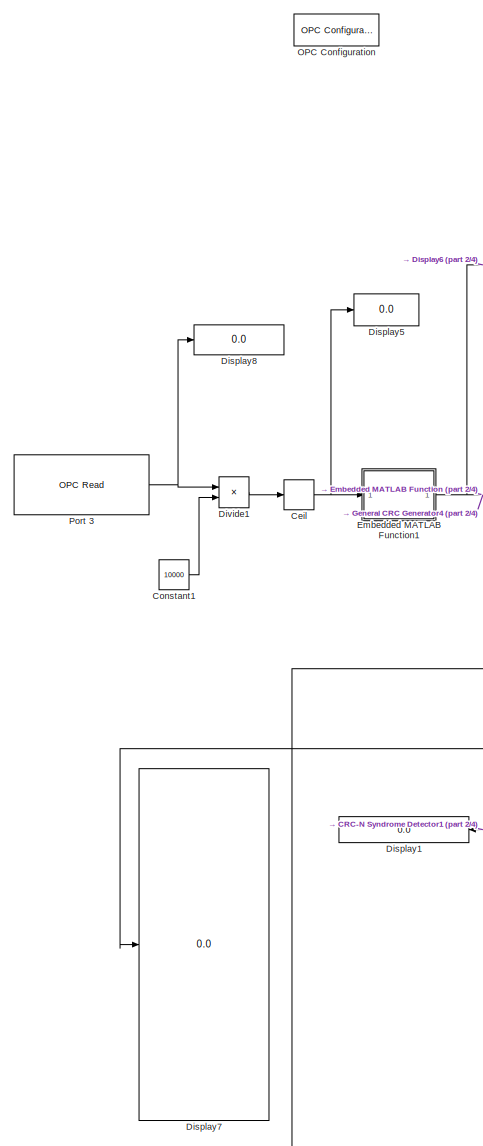
[diagram: root canvas - part 1/4, middle left region]
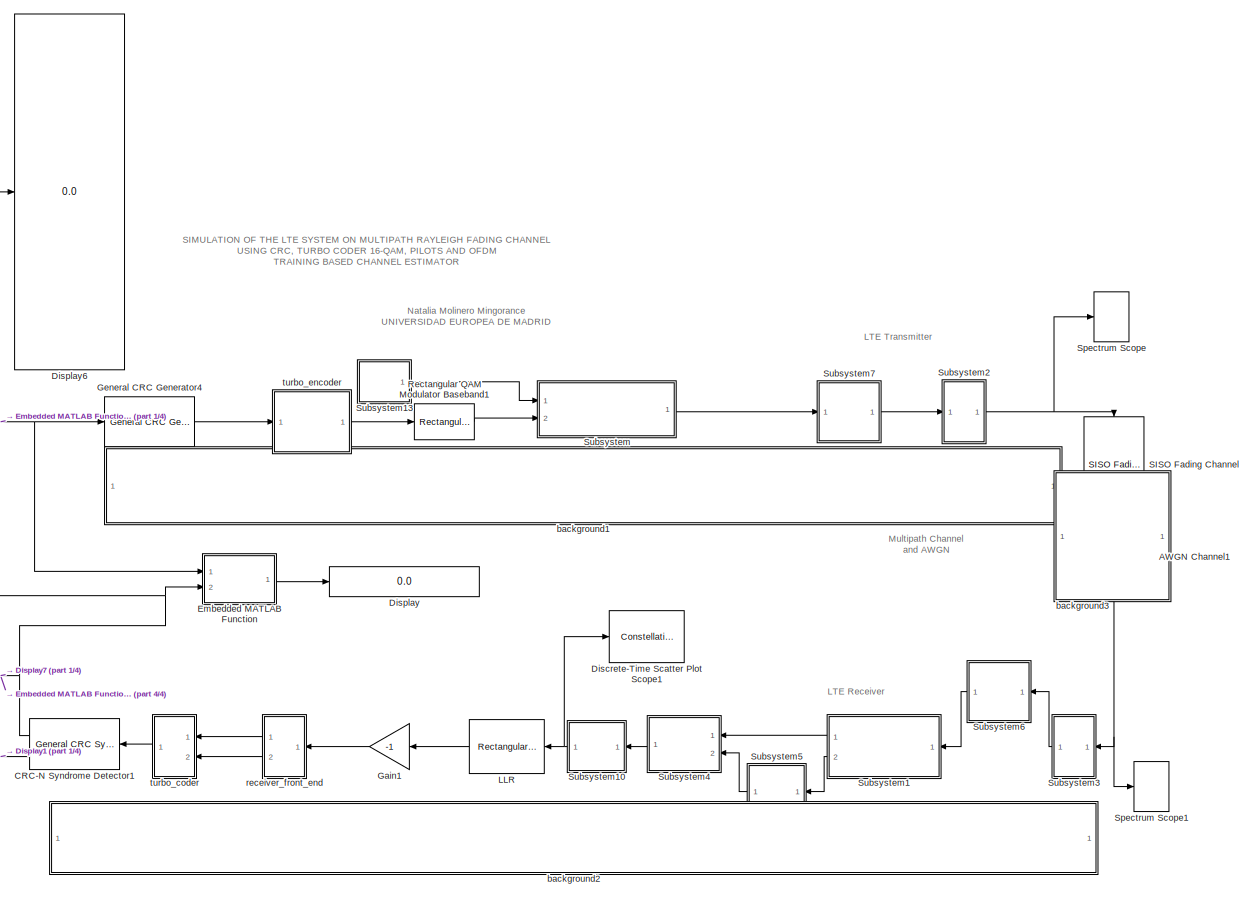
[diagram: root canvas - part 2/4, top center region]
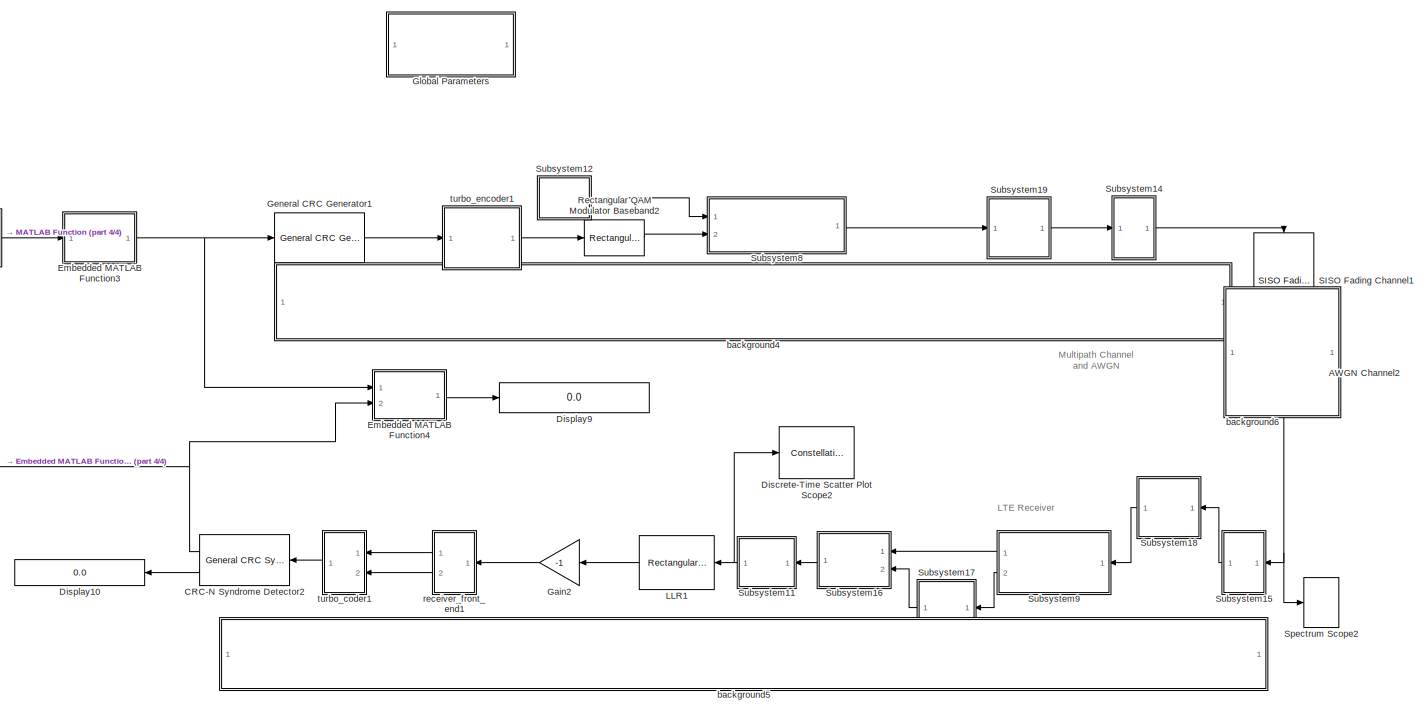
[diagram: root canvas - part 3/4, bottom right region]
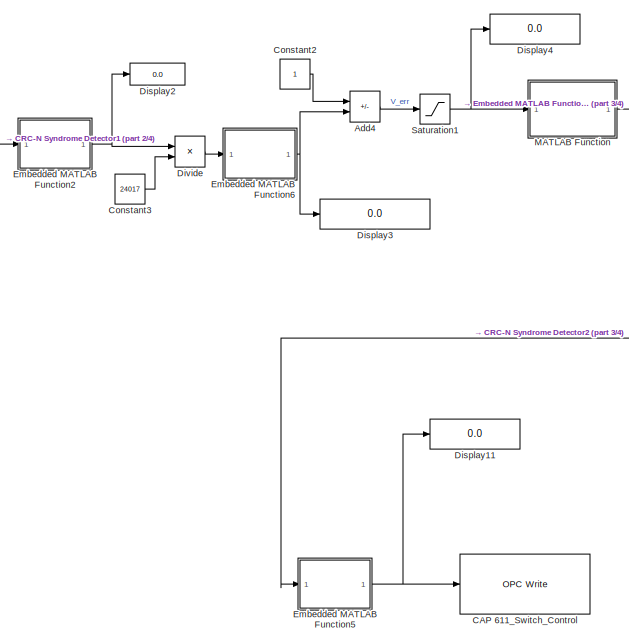
[diagram: root canvas - part 4/4, bottom left region]
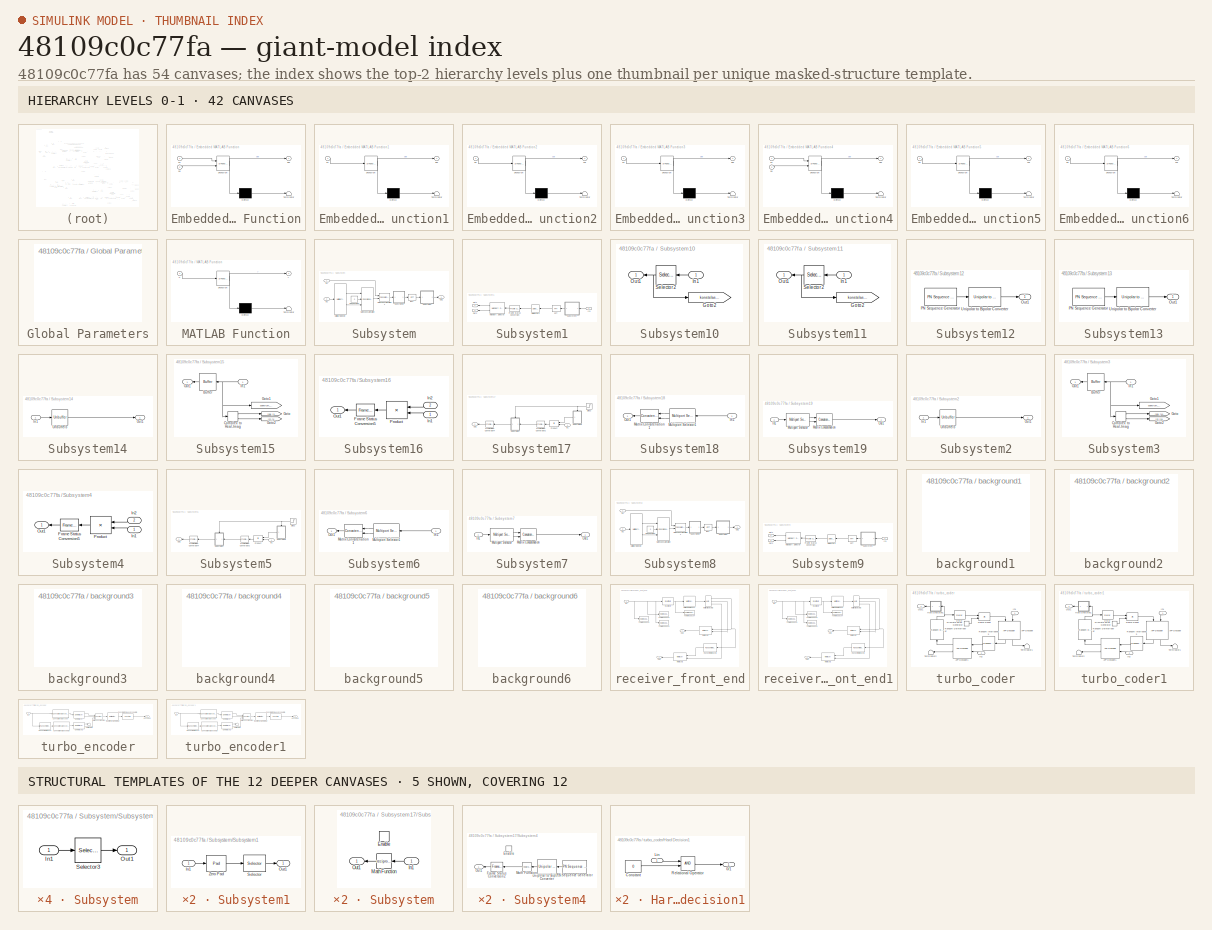
[diagram: thumbnail index - top-2 hierarchy levels (42 canvases) + 5 structural-template representatives of the remaining 12 canvases]
MODEL slx_48109c0c77fa
KIND model
CONFIG AbsTol = auto
CONFIG EnableMultiTasking = on
CONFIG FixedStep = auto
CONFIG MaxStep = auto
CONFIG MinStep = auto
CONFIG RelTol = 1e-3
CONFIG SampleTimeConstraint = Unconstrained
CONFIG SolverName = ode45
CONFIG StartTime = 0.0
CONFIG StopTime = 5
BLOCK [Reference] AWGN Channel1  REF=commchan3/AWGN
Channel
  NameLocation = left
  Ports = [1, 1]
  SourceBlock = commchan3/AWGN\nChannel
  SourceProductBaseCode = CM
  SourceType = AWGN Channel
BLOCK [Reference] AWGN Channel2  REF=commchan3/AWGN
Channel
  NameLocation = left
  Ports = [1, 1]
  SourceBlock = commchan3/AWGN\nChannel
  SourceProductBaseCode = CM
  SourceType = AWGN Channel
BLOCK [Sum] Add4
  IconShape = rectangular
  Inputs = +-
  Ports = [2, 1]
BLOCK [Reference] CAP 611_Switch_Control  REF=opclib/OPC Write
  Ports = [1]
  SourceBlock = opclib/OPC Write
  SourceProductBaseCode = OT
  SourceType = OPC Write
BLOCK [Reference] CRC-N Syndrome Detector1  REF=commcrc2/General CRC
Syndrome
Detector
  NameLocation = top
  Ports = [1, 2]
  SourceBlock = commcrc2/General CRC\nSyndrome\nDetector
  SourceProductBaseCode = CM
  SourceType = General CRC Syndrome Detector
BLOCK [Reference] CRC-N Syndrome Detector2  REF=commcrc2/General CRC
Syndrome
Detector
  NameLocation = top
  Ports = [1, 2]
  SourceBlock = commcrc2/General CRC\nSyndrome\nDetector
  SourceProductBaseCode = CM
  SourceType = General CRC Syndrome Detector
BLOCK [Rounding] Ceil
  Operator = fix
BLOCK [Constant] Constant1
  Value = 10000
BLOCK [Constant] Constant2
BLOCK [Constant] Constant3
  Value = 24017
BLOCK [ConstellationDiagram] Discrete-Time Scatter Plot Scope1
  Commented = on
  Ports = [1]
  ScopeSpecificationString = comm.scopes.ConstellationDiagramBlockCfg('CurrentConfiguration', extmgr.ConfigurationSet(extmgr.Configuration('Core','General UI',true),extmgr.Configuration('Core','Source UI',true),extmgr.Configuration('Sources','WiredSimulink',true),extmgr.Configuration('Visuals','Constellation',true,'MinYLim','-0.710699489007895','MaxYLim','0.71034','MinXLim','-0.707933120701309','MaxXLim','0.7131','AxesPropert...<+1378ch>
  Tag = ScatterPlot
BLOCK [ConstellationDiagram] Discrete-Time Scatter Plot Scope2
  Commented = on
  Ports = [1]
  ScopeSpecificationString = comm.scopes.ConstellationDiagramBlockCfg('CurrentConfiguration', extmgr.ConfigurationSet(extmgr.Configuration('Core','General UI',true),extmgr.Configuration('Core','Source UI',true),extmgr.Configuration('Sources','WiredSimulink',true),extmgr.Configuration('Visuals','Constellation',true,'MinYLim','-0.710699489007895','MaxYLim','0.71034','MinXLim','-0.707933120701309','MaxXLim','0.7131','AxesPropert...<+1378ch>
  Tag = ScatterPlot
BLOCK [Display] Display
  Decimation = 1
  Format = long
  Ports = [1]
BLOCK [Display] Display1
  Decimation = 1
  Format = long
  Ports = [1]
BLOCK [Display] Display10
  Decimation = 1
  Format = long
  Ports = [1]
BLOCK [Display] Display11
  Decimation = 1
  Ports = [1]
BLOCK [Display] Display2
  Decimation = 1
  Format = long
  Ports = [1]
BLOCK [Display] Display3
  Decimation = 1
  Format = long
  Ports = [1]
BLOCK [Display] Display4
  Decimation = 1
  Ports = [1]
BLOCK [Display] Display5
  Decimation = 1
  Format = long
  Ports = [1]
BLOCK [Display] Display6
  Decimation = 1
  Ports = [1]
BLOCK [Display] Display7
  Decimation = 1
  Format = long
  Ports = [1]
BLOCK [Display] Display8
  Decimation = 1
  Ports = [1]
BLOCK [Display] Display9
  Decimation = 1
  Format = long
  Ports = [1]
BLOCK [Product] Divide
  Inputs = */
  Ports = [2, 1]
BLOCK [Product] Divide1
  Ports = [2, 1]
BLOCK [SubSystem] Embedded MATLAB Function
  ErrorFcn = Stateflow.Translate.translate
  PermitHierarchicalResolution = ExplicitOnly
  Ports = [2, 1]
  RequestExecContextInheritance = off
  SFBlockType = MATLAB Function
  TreatAsAtomicUnit = on
BLOCK [Demux] Embedded MATLAB Function/ Demux 
  Outputs = 1
  Ports = [1, 1]
BLOCK [S-Function] Embedded MATLAB Function/ SFunction 
  EnableBusSupport = on
  FunctionName = sf_sfun
  PortCounts = [2 2]
  Ports = [2, 2]
  SFcnIsStateOwnerBlock = off
  SFunctionDeploymentMode = off
  Tag = Stateflow S-Function 2
BLOCK [Terminator] Embedded MATLAB Function/ Terminator 
BLOCK [Outport] Embedded MATLAB Function/ber
BLOCK [Inport] Embedded MATLAB Function/s2
BLOCK [Inport] Embedded MATLAB Function/s8
  Port = 2
BLOCK [SubSystem] Embedded MATLAB Function1
  ErrorFcn = Stateflow.Translate.translate
  PermitHierarchicalResolution = ExplicitOnly
  Ports = [1, 1]
  RequestExecContextInheritance = off
  SFBlockType = MATLAB Function
  TreatAsAtomicUnit = on
BLOCK [Demux] Embedded MATLAB Function1/ Demux 
  Outputs = 1
  Ports = [1, 1]
BLOCK [S-Function] Embedded MATLAB Function1/ SFunction 
  EnableBusSupport = on
  FunctionName = sf_sfun
  PortCounts = [1 2]
  Ports = [1, 2]
  SFcnIsStateOwnerBlock = off
  SFunctionDeploymentMode = off
  Tag = Stateflow S-Function 1
BLOCK [Terminator] Embedded MATLAB Function1/ Terminator 
BLOCK [Outport] Embedded MATLAB Function1/ber
BLOCK [Inport] Embedded MATLAB Function1/s2
BLOCK [SubSystem] Embedded MATLAB Function2
  ErrorFcn = Stateflow.Translate.translate
  PermitHierarchicalResolution = ExplicitOnly
  Ports = [1, 1]
  RequestExecContextInheritance = off
  SFBlockType = MATLAB Function
  TreatAsAtomicUnit = on
BLOCK [Demux] Embedded MATLAB Function2/ Demux 
  Outputs = 1
  Ports = [1, 1]
BLOCK [S-Function] Embedded MATLAB Function2/ SFunction 
  EnableBusSupport = on
  FunctionName = sf_sfun
  PortCounts = [1 2]
  Ports = [1, 2]
  SFcnIsStateOwnerBlock = off
  SFunctionDeploymentMode = off
  Tag = Stateflow S-Function 3
BLOCK [Terminator] Embedded MATLAB Function2/ Terminator 
BLOCK [Outport] Embedded MATLAB Function2/cer
BLOCK [Inport] Embedded MATLAB Function2/s8
BLOCK [SubSystem] Embedded MATLAB Function3
  ErrorFcn = Stateflow.Translate.translate
  PermitHierarchicalResolution = ExplicitOnly
  Ports = [1, 1]
  RequestExecContextInheritance = off
  SFBlockType = MATLAB Function
  TreatAsAtomicUnit = on
BLOCK [Demux] Embedded MATLAB Function3/ Demux 
  Outputs = 1
  Ports = [1, 1]
BLOCK [S-Function] Embedded MATLAB Function3/ SFunction 
  EnableBusSupport = on
  FunctionName = sf_sfun
  PortCounts = [1 2]
  Ports = [1, 2]
  SFcnIsStateOwnerBlock = off
  SFunctionDeploymentMode = off
  Tag = Stateflow S-Function 5
BLOCK [Terminator] Embedded MATLAB Function3/ Terminator 
BLOCK [Outport] Embedded MATLAB Function3/ber
BLOCK [Inport] Embedded MATLAB Function3/s2
BLOCK [SubSystem] Embedded MATLAB Function4
  ErrorFcn = Stateflow.Translate.translate
  PermitHierarchicalResolution = ExplicitOnly
  Ports = [2, 1]
  RequestExecContextInheritance = off
  SFBlockType = MATLAB Function
  TreatAsAtomicUnit = on
BLOCK [Demux] Embedded MATLAB Function4/ Demux 
  Outputs = 1
  Ports = [1, 1]
BLOCK [S-Function] Embedded MATLAB Function4/ SFunction 
  EnableBusSupport = on
  FunctionName = sf_sfun
  PortCounts = [2 2]
  Ports = [2, 2]
  SFcnIsStateOwnerBlock = off
  SFunctionDeploymentMode = off
  Tag = Stateflow S-Function 6
BLOCK [Terminator] Embedded MATLAB Function4/ Terminator 
BLOCK [Outport] Embedded MATLAB Function4/ber
BLOCK [Inport] Embedded MATLAB Function4/s2
BLOCK [Inport] Embedded MATLAB Function4/s8
  Port = 2
BLOCK [SubSystem] Embedded MATLAB Function5
  ErrorFcn = Stateflow.Translate.translate
  PermitHierarchicalResolution = ExplicitOnly
  Ports = [1, 1]
  RequestExecContextInheritance = off
  SFBlockType = MATLAB Function
  TreatAsAtomicUnit = on
BLOCK [Demux] Embedded MATLAB Function5/ Demux 
  Outputs = 1
  Ports = [1, 1]
BLOCK [S-Function] Embedded MATLAB Function5/ SFunction 
  EnableBusSupport = on
  FunctionName = sf_sfun
  PortCounts = [1 2]
  Ports = [1, 2]
  SFcnIsStateOwnerBlock = off
  SFunctionDeploymentMode = off
  Tag = Stateflow S-Function 7
BLOCK [Terminator] Embedded MATLAB Function5/ Terminator 
BLOCK [Outport] Embedded MATLAB Function5/cer
BLOCK [Inport] Embedded MATLAB Function5/s8
BLOCK [SubSystem] Embedded MATLAB Function6
  ErrorFcn = Stateflow.Translate.translate
  PermitHierarchicalResolution = ExplicitOnly
  Ports = [1, 1]
  RequestExecContextInheritance = off
  SFBlockType = MATLAB Function
  TreatAsAtomicUnit = on
BLOCK [Demux] Embedded MATLAB Function6/ Demux 
  Outputs = 1
  Ports = [1, 1]
BLOCK [S-Function] Embedded MATLAB Function6/ SFunction 
  EnableBusSupport = on
  FunctionName = sf_sfun
  PortCounts = [1 2]
  Ports = [1, 2]
  SFcnIsStateOwnerBlock = off
  SFunctionDeploymentMode = off
  Tag = Stateflow S-Function 8
BLOCK [Terminator] Embedded MATLAB Function6/ Terminator 
BLOCK [Outport] Embedded MATLAB Function6/cer
BLOCK [Inport] Embedded MATLAB Function6/s8
BLOCK [Gain] Gain1
  Gain = -1
  NameLocation = top
  OutDataTypeStr = Inherit: Same as input
  ParamDataTypeStr = Inherit: Same as input
  SaturateOnIntegerOverflow = on
BLOCK [Gain] Gain2
  Gain = -1
  NameLocation = top
  OutDataTypeStr = Inherit: Same as input
  ParamDataTypeStr = Inherit: Same as input
  SaturateOnIntegerOverflow = on
BLOCK [Reference] General CRC Generator1  REF=commcrc2/General CRC
Generator
  Ports = [1, 1]
  SourceBlock = commcrc2/General CRC\nGenerator
  SourceProductBaseCode = CM
  SourceType = General CRC Generator
BLOCK [Reference] General CRC Generator4  REF=commcrc2/General CRC
Generator
  Ports = [1, 1]
  SourceBlock = commcrc2/General CRC\nGenerator
  SourceProductBaseCode = CM
  SourceType = General CRC Generator
BLOCK [SubSystem] Global Parameters
  Ports = []
  RequestExecContextInheritance = off
BLOCK [Reference] LLR  REF=commdigbbndam3/Rectangular QAM
Demodulator
Baseband
  NameLocation = top
  Ports = [1, 1]
  SourceBlock = commdigbbndam3/Rectangular QAM\nDemodulator\nBaseband
  SourceProductBaseCode = CM
  SourceType = Rectangular QAM Demodulator Baseband
BLOCK [Reference] LLR1  REF=commdigbbndam3/Rectangular QAM
Demodulator
Baseband
  NameLocation = top
  Ports = [1, 1]
  SourceBlock = commdigbbndam3/Rectangular QAM\nDemodulator\nBaseband
  SourceProductBaseCode = CM
  SourceType = Rectangular QAM Demodulator Baseband
BLOCK [SubSystem] MATLAB Function
  ErrorFcn = Stateflow.Translate.translate
  PermitHierarchicalResolution = ExplicitOnly
  Ports = [1, 1]
  RequestExecContextInheritance = off
  SFBlockType = MATLAB Function
  TreatAsAtomicUnit = on
BLOCK [Demux] MATLAB Function/ Demux 
  Outputs = 1
  Ports = [1, 1]
BLOCK [S-Function] MATLAB Function/ SFunction 
  EnableBusSupport = on
  FunctionName = sf_sfun
  PortCounts = [1 2]
  Ports = [1, 2]
  SFcnIsStateOwnerBlock = off
  SFunctionDeploymentMode = off
  Tag = Stateflow S-Function 4
BLOCK [Terminator] MATLAB Function/ Terminator 
BLOCK [Inport] MATLAB Function/u
BLOCK [Outport] MATLAB Function/y
BLOCK [Reference] OPC Configuration  REF=opclib/OPC Configuration
  Ports = []
  SourceBlock = opclib/OPC Configuration
  SourceProductBaseCode = OT
  SourceType = OPC Configuration
BLOCK [Reference] Port 3  REF=opclib/OPC Read
  Ports = [0, 1]
  SourceBlock = opclib/OPC Read
  SourceProductBaseCode = OT
  SourceType = OPC Read
BLOCK [Reference] Rectangular QAM Modulator Baseband1  REF=commdigbbndam3/Rectangular QAM
Modulator
Baseband
  Ports = [1, 1]
  SourceBlock = commdigbbndam3/Rectangular QAM\nModulator\nBaseband
  SourceProductBaseCode = CM
  SourceType = Rectangular QAM Modulator Baseband
BLOCK [Reference] Rectangular QAM Modulator Baseband2  REF=commdigbbndam3/Rectangular QAM
Modulator
Baseband
  Ports = [1, 1]
  SourceBlock = commdigbbndam3/Rectangular QAM\nModulator\nBaseband
  SourceProductBaseCode = CM
  SourceType = Rectangular QAM Modulator Baseband
BLOCK [Reference] SISO Fading Channel  REF=commchan3/SISO Fading Channel
  NameLocation = left
  Ports = [1, 1]
  SourceBlock = commchan3/SISO Fading Channel
  SourceProductBaseCode = CM
  SourceType = SISO Fading Channel
BLOCK [Reference] SISO Fading Channel1  REF=commchan3/SISO Fading Channel
  NameLocation = left
  Ports = [1, 1]
  SourceBlock = commchan3/SISO Fading Channel
  SourceProductBaseCode = CM
  SourceType = SISO Fading Channel
BLOCK [Saturate] Saturation1
  LowerLimit = -0.05
  UpperLimit = 0.05
BLOCK [SpectrumAnalyzer] Spectrum Scope
  Commented = on
  Ports = [1]
  ScopeSpecificationString = spbscopes.SpectrumAnalyzerBlockCfg('CurrentConfiguration', extmgr.ConfigurationSet(extmgr.Configuration('Core','General UI',true),extmgr.Configuration('Core','Source UI',true),extmgr.Configuration('Sources','WiredSimulink',true),extmgr.Configuration('Visuals','Spectrum',true,'AxesProperties',struct('Color',{[0 0 0],[0 0 0]},'XColor',{[0.686274509803922 0.686274509803922 0.686274509803922],[0.68627...<+2213ch>
BLOCK [SpectrumAnalyzer] Spectrum Scope1
  Commented = on
  Ports = [1]
  ScopeSpecificationString = spbscopes.SpectrumAnalyzerBlockCfg('CurrentConfiguration', extmgr.ConfigurationSet(extmgr.Configuration('Core','General UI',true),extmgr.Configuration('Core','Source UI',true),extmgr.Configuration('Sources','WiredSimulink',true),extmgr.Configuration('Visuals','Spectrum',true,'AxesProperties',struct('Color',{[0 0 0],[0 0 0]},'XColor',{[0.686274509803922 0.686274509803922 0.686274509803922],[0.68627...<+2096ch>
BLOCK [SpectrumAnalyzer] Spectrum Scope2
  Ports = [1]
  ScopeSpecificationString = spbscopes.SpectrumAnalyzerBlockCfg('CurrentConfiguration', extmgr.ConfigurationSet(extmgr.Configuration('Core','General UI',true),extmgr.Configuration('Core','Source UI',true),extmgr.Configuration('Sources','WiredSimulink',true),extmgr.Configuration('Visuals','Spectrum',true,'AxesProperties',struct('Color',{[0 0 0],[0 0 0]},'XColor',{[0.686274509803922 0.686274509803922 0.686274509803922],[0.68627...<+2214ch>
BLOCK [SubSystem] Subsystem
  Ports = [2, 1]
  RequestExecContextInheritance = off
BLOCK [Constant] Subsystem/DSP Constant
  FramePeriod = 16e-5/2
  SamplingMode = Frame based
  Value = 0
  VectorParams1D = off
BLOCK [Reference] Subsystem/IFFT  REF=dspxfrm3/IFFT
  Ports = [1, 1]
  SourceBlock = dspxfrm3/IFFT
  SourceProductBaseCode = DS
  SourceType = IFFT
BLOCK [Inport] Subsystem/In1
BLOCK [Inport] Subsystem/In2
  Port = 2
BLOCK [Concatenate] Subsystem/Matrix Concatenation
  Mode = Multidimensional array
  NumInputs = 3
  Ports = [3, 1]
BLOCK [Concatenate] Subsystem/Matrix Concatenation1
  ConcatenateDimension = 2
  Mode = Multidimensional array
  Ports = [2, 1]
BLOCK [Reference] Subsystem/Multiport Selector  REF=dspindex/Multiport
Selector
  Ports = [1, 2]
  SourceBlock = dspindex/Multiport\nSelector
  SourceProductBaseCode = DS
  SourceType = Multiport Selector
BLOCK [Outport] Subsystem/Out1
BLOCK [SubSystem] Subsystem/Subsystem
  Ports = [1, 1]
  RequestExecContextInheritance = off
BLOCK [Inport] Subsystem/Subsystem/In1
BLOCK [Outport] Subsystem/Subsystem/Out1
BLOCK [Selector] Subsystem/Subsystem/Selector3
  IndexOptions = Index vector (dialog),Select all
  Indices = [39:64,1:64],-1
  InputPortWidth = 64
  NumberOfDimensions = 2
  OutputSizes = 1
  Ports = [1, 1]
BLOCK [SubSystem] Subsystem/Subsystem1
  Ports = [1, 1]
  RequestExecContextInheritance = off
BLOCK [Inport] Subsystem/Subsystem1/In1
BLOCK [Outport] Subsystem/Subsystem1/Out1
BLOCK [Selector] Subsystem/Subsystem1/Selector
  IndexOptions = Index vector (dialog),Select all
  Indices = [12:64,1:11],-1
  InputPortWidth = 64
  NumberOfDimensions = 2
  OutputSizes = 1
  Ports = [1, 1]
BLOCK [Reference] Subsystem/Subsystem1/Zero Pad  REF=dspsigops/Pad
  Ports = [1, 1]
  SourceBlock = dspsigops/Pad
  SourceProductBaseCode = DS
  SourceType = Pad
BLOCK [SubSystem] Subsystem1
  Ports = [1, 2]
  RequestExecContextInheritance = off
BLOCK [Reference] Subsystem1/FFT  REF=dspxfrm3/FFT
  Ports = [1, 1]
  SourceBlock = dspxfrm3/FFT
  SourceProductBaseCode = DS
  SourceType = FFT
BLOCK [Reference] Subsystem1/Frame Status Conversion  REF=dspobslib/Frame Status
Conversion
  Ports = [1, 1]
  SourceBlock = dspobslib/Frame Status\nConversion
  SourceProductBaseCode = DS
  SourceType = Frame Status Conversion
BLOCK [Inport] Subsystem1/In1
BLOCK [Reference] Subsystem1/Multiport Selector  REF=dspindex/Multiport
Selector
  Ports = [1, 2]
  SourceBlock = dspindex/Multiport\nSelector
  SourceProductBaseCode = DS
  SourceType = Multiport Selector
BLOCK [Outport] Subsystem1/Out1
BLOCK [Outport] Subsystem1/Out2
  Port = 2
BLOCK [Selector] Subsystem1/Selector1
  IndexOptions = Index vector (dialog),Select all
  Indices = [54:64,1:12],-1
  InputPortWidth = 64
  NumberOfDimensions = 2
  OutputSizes = 1
  Ports = [1, 1]
BLOCK [SubSystem] Subsystem1/Subsystem
  Ports = [1, 1]
  RequestExecContextInheritance = off
BLOCK [Inport] Subsystem1/Subsystem/In1
BLOCK [Outport] Subsystem1/Subsystem/Out1
BLOCK [Selector] Subsystem1/Subsystem/Selector4
  IndexOptions = Index vector (dialog),Select all
  Indices = [27:90],-1
  InputPortWidth = 78
  NumberOfDimensions = 2
  OutputSizes = 1
  Ports = [1, 1]
BLOCK [SubSystem] Subsystem10
  Ports = [1, 1]
  RequestExecContextInheritance = off
BLOCK [Goto] Subsystem10/Goto2
  GotoTag = konstelasi_stl1
  TagVisibility = global
BLOCK [Inport] Subsystem10/In1
BLOCK [Outport] Subsystem10/Out1
BLOCK [Selector] Subsystem10/Selector2
  IndexOptions = Index vector (dialog),Select all
  Indices = [1:11,13:23],-1
  InputPortWidth = 31
  NumberOfDimensions = 2
  OutputSizes = 1
  Ports = [1, 1]
BLOCK [SubSystem] Subsystem11
  Ports = [1, 1]
  RequestExecContextInheritance = off
BLOCK [Goto] Subsystem11/Goto2
  GotoTag = konstelasi_stl
  TagVisibility = global
BLOCK [Inport] Subsystem11/In1
BLOCK [Outport] Subsystem11/Out1
BLOCK [Selector] Subsystem11/Selector2
  IndexOptions = Index vector (dialog),Select all
  Indices = [1:11,13:23],-1
  InputPortWidth = 31
  NumberOfDimensions = 2
  OutputSizes = 1
  Ports = [1, 1]
BLOCK [SubSystem] Subsystem12
  Ports = [0, 1]
  RequestExecContextInheritance = off
BLOCK [Outport] Subsystem12/Out1
BLOCK [Reference] Subsystem12/PN Sequence Generator  REF=commseqgen3/PN Sequence
Generator
  Ports = [0, 1]
  SourceBlock = commseqgen3/PN Sequence\nGenerator
  SourceProductBaseCode = CM
  SourceType = PN Sequence Generator
BLOCK [Reference] Subsystem12/Unipolar to Bipolar Converter  REF=commutil2/Unipolar to
Bipolar
Converter
  Ports = [1, 1]
  SourceBlock = commutil2/Unipolar to\nBipolar\nConverter
  SourceProductBaseCode = CM
  SourceType = Unipolar to Bipolar Converter
BLOCK [SubSystem] Subsystem13
  Ports = [0, 1]
  RequestExecContextInheritance = off
BLOCK [Outport] Subsystem13/Out1
BLOCK [Reference] Subsystem13/PN Sequence Generator  REF=commseqgen3/PN Sequence
Generator
  Ports = [0, 1]
  SourceBlock = commseqgen3/PN Sequence\nGenerator
  SourceProductBaseCode = CM
  SourceType = PN Sequence Generator
BLOCK [Reference] Subsystem13/Unipolar to Bipolar Converter  REF=commutil2/Unipolar to
Bipolar
Converter
  Ports = [1, 1]
  SourceBlock = commutil2/Unipolar to\nBipolar\nConverter
  SourceProductBaseCode = CM
  SourceType = Unipolar to Bipolar Converter
BLOCK [SubSystem] Subsystem14
  Ports = [1, 1]
  RequestExecContextInheritance = off
BLOCK [Inport] Subsystem14/In1
BLOCK [Outport] Subsystem14/Out1
BLOCK [Unbuffer] Subsystem14/Unbuffer3
  Ports = [1, 1]
BLOCK [SubSystem] Subsystem15
  Ports = [1, 1]
  RequestExecContextInheritance = off
BLOCK [Buffer] Subsystem15/Buffer
  N = 180
BLOCK [ComplexToRealImag] Subsystem15/Complex to Real-Imag
  Ports = [1, 2]
BLOCK [Goto] Subsystem15/Goto
  GotoTag = real_rx
  TagVisibility = global
BLOCK [Goto] Subsystem15/Goto1
  GotoTag = spektrum_terima
  TagVisibility = global
BLOCK [Goto] Subsystem15/Goto2
  GotoTag = im_rx
  TagVisibility = global
BLOCK [Inport] Subsystem15/In1
BLOCK [Outport] Subsystem15/Out1
BLOCK [SubSystem] Subsystem16
  Ports = [2, 1]
  RequestExecContextInheritance = off
BLOCK [Reference] Subsystem16/Frame Status Conversion5  REF=dspobslib/Frame Status
Conversion
  Ports = [1, 1]
  SourceBlock = dspobslib/Frame Status\nConversion
  SourceProductBaseCode = DS
  SourceType = Frame Status Conversion
BLOCK [Inport] Subsystem16/In1
BLOCK [Inport] Subsystem16/In2
  Port = 2
BLOCK [Outport] Subsystem16/Out1
BLOCK [Product] Subsystem16/Product
  OutDataTypeStr = Inherit: Same as first input
  Ports = [2, 1]
  SaturateOnIntegerOverflow = on
BLOCK [SubSystem] Subsystem17
  Ports = [1, 1]
  RequestExecContextInheritance = off
BLOCK [Reference] Subsystem17/Frame Status Conversion2  REF=dspobslib/Frame Status
Conversion
  Ports = [1, 1]
  SourceBlock = dspobslib/Frame Status\nConversion
  SourceProductBaseCode = DS
  SourceType = Frame Status Conversion
BLOCK [Reference] Subsystem17/Frame Status Conversion4  REF=dspobslib/Frame Status
Conversion
  Ports = [1, 1]
  SourceBlock = dspobslib/Frame Status\nConversion
  SourceProductBaseCode = DS
  SourceType = Frame Status Conversion
BLOCK [Inport] Subsystem17/In1
BLOCK [Outport] Subsystem17/Out1
BLOCK [Product] Subsystem17/Product
  OutDataTypeStr = Inherit: Same as first input
  Ports = [2, 1]
  SaturateOnIntegerOverflow = on
BLOCK [Step] Subsystem17/Step2
  SampleTime = 16e-5/2
  Time = 16e-5/2
BLOCK [SubSystem] Subsystem17/Subsystem
  Ports = [1, 1, 1]
  RequestExecContextInheritance = off
BLOCK [EnablePort] Subsystem17/Subsystem/Enable
  Ports = []
BLOCK [Inport] Subsystem17/Subsystem/In1
BLOCK [Math] Subsystem17/Subsystem/Math Function
  Operator = reciprocal
  Ports = [1, 1]
  SignedPower = on
BLOCK [Outport] Subsystem17/Subsystem/Out1
BLOCK [SubSystem] Subsystem17/Subsystem4
  Ports = [0, 1, 1]
  RequestExecContextInheritance = off
  TreatAsAtomicUnit = on
BLOCK [EnablePort] Subsystem17/Subsystem4/Enable
  Ports = []
BLOCK [Reference] Subsystem17/Subsystem4/Frame Status Conversion2  REF=dspobslib/Frame Status
Conversion
  Ports = [1, 1]
  SourceBlock = dspobslib/Frame Status\nConversion
  SourceProductBaseCode = DS
  SourceType = Frame Status Conversion
BLOCK [Math] Subsystem17/Subsystem4/Math Function
  Operator = reciprocal
  Ports = [1, 1]
  SignedPower = on
BLOCK [Outport] Subsystem17/Subsystem4/Out1
BLOCK [Reference] Subsystem17/Subsystem4/PN Sequence Generator  REF=commseqgen3/PN Sequence
Generator
  Ports = [0, 1]
  SourceBlock = commseqgen3/PN Sequence\nGenerator
  SourceProductBaseCode = CM
  SourceType = PN Sequence Generator
BLOCK [Reference] Subsystem17/Subsystem4/Unipolar to Bipolar Converter  REF=commutil2/Unipolar to
Bipolar
Converter
  Ports = [1, 1]
  SourceBlock = commutil2/Unipolar to\nBipolar\nConverter
  SourceProductBaseCode = CM
  SourceType = Unipolar to Bipolar Converter
BLOCK [SubSystem] Subsystem18
  Ports = [1, 1]
  RequestExecContextInheritance = off
BLOCK [Inport] Subsystem18/In1
BLOCK [Concatenate] Subsystem18/Matrix Concatenation1
  ConcatenateDimension = 2
  Mode = Multidimensional array
  Ports = [2, 1]
BLOCK [Reference] Subsystem18/Multiport Selector1  REF=dspindex/Multiport
Selector
  Ports = [1, 2]
  SourceBlock = dspindex/Multiport\nSelector
  SourceProductBaseCode = DS
  SourceType = Multiport Selector
BLOCK [Outport] Subsystem18/Out1
BLOCK [SubSystem] Subsystem19
  Ports = [1, 1]
  RequestExecContextInheritance = off
BLOCK [Inport] Subsystem19/In1
BLOCK [Concatenate] Subsystem19/Matrix Concatenation
  Mode = Multidimensional array
  Ports = [2, 1]
BLOCK [Reference] Subsystem19/Multiport Selector  REF=dspindex/Multiport
Selector
  Ports = [1, 2]
  SourceBlock = dspindex/Multiport\nSelector
  SourceProductBaseCode = DS
  SourceType = Multiport Selector
BLOCK [Outport] Subsystem19/Out1
BLOCK [SubSystem] Subsystem2
  Ports = [1, 1]
  RequestExecContextInheritance = off
BLOCK [Inport] Subsystem2/In1
BLOCK [Outport] Subsystem2/Out1
BLOCK [Unbuffer] Subsystem2/Unbuffer3
  Ports = [1, 1]
BLOCK [SubSystem] Subsystem3
  Ports = [1, 1]
  RequestExecContextInheritance = off
BLOCK [Buffer] Subsystem3/Buffer
  N = 180
BLOCK [ComplexToRealImag] Subsystem3/Complex to Real-Imag
  Ports = [1, 2]
BLOCK [Goto] Subsystem3/Goto
  GotoTag = real_rx1
  TagVisibility = global
BLOCK [Goto] Subsystem3/Goto1
  GotoTag = spektrum_terima1
  TagVisibility = global
BLOCK [Goto] Subsystem3/Goto2
  GotoTag = im_rx1
  TagVisibility = global
BLOCK [Inport] Subsystem3/In1
BLOCK [Outport] Subsystem3/Out1
BLOCK [SubSystem] Subsystem4
  Ports = [2, 1]
  RequestExecContextInheritance = off
BLOCK [Reference] Subsystem4/Frame Status Conversion5  REF=dspobslib/Frame Status
Conversion
  Ports = [1, 1]
  SourceBlock = dspobslib/Frame Status\nConversion
  SourceProductBaseCode = DS
  SourceType = Frame Status Conversion
BLOCK [Inport] Subsystem4/In1
BLOCK [Inport] Subsystem4/In2
  Port = 2
BLOCK [Outport] Subsystem4/Out1
BLOCK [Product] Subsystem4/Product
  OutDataTypeStr = Inherit: Same as first input
  Ports = [2, 1]
  SaturateOnIntegerOverflow = on
BLOCK [SubSystem] Subsystem5
  Ports = [1, 1]
  RequestExecContextInheritance = off
BLOCK [Reference] Subsystem5/Frame Status Conversion2  REF=dspobslib/Frame Status
Conversion
  Ports = [1, 1]
  SourceBlock = dspobslib/Frame Status\nConversion
  SourceProductBaseCode = DS
  SourceType = Frame Status Conversion
BLOCK [Reference] Subsystem5/Frame Status Conversion4  REF=dspobslib/Frame Status
Conversion
  Ports = [1, 1]
  SourceBlock = dspobslib/Frame Status\nConversion
  SourceProductBaseCode = DS
  SourceType = Frame Status Conversion
BLOCK [Inport] Subsystem5/In1
BLOCK [Outport] Subsystem5/Out1
BLOCK [Product] Subsystem5/Product
  OutDataTypeStr = Inherit: Same as first input
  Ports = [2, 1]
  SaturateOnIntegerOverflow = on
BLOCK [Step] Subsystem5/Step2
  SampleTime = 16e-5/2
  Time = 16e-5/2
BLOCK [SubSystem] Subsystem5/Subsystem
  Ports = [1, 1, 1]
  RequestExecContextInheritance = off
BLOCK [EnablePort] Subsystem5/Subsystem/Enable
  Ports = []
BLOCK [Inport] Subsystem5/Subsystem/In1
BLOCK [Math] Subsystem5/Subsystem/Math Function
  Operator = reciprocal
  Ports = [1, 1]
  SignedPower = on
BLOCK [Outport] Subsystem5/Subsystem/Out1
BLOCK [SubSystem] Subsystem5/Subsystem4
  Ports = [0, 1, 1]
  RequestExecContextInheritance = off
  TreatAsAtomicUnit = on
BLOCK [EnablePort] Subsystem5/Subsystem4/Enable
  Ports = []
BLOCK [Reference] Subsystem5/Subsystem4/Frame Status Conversion2  REF=dspobslib/Frame Status
Conversion
  Ports = [1, 1]
  SourceBlock = dspobslib/Frame Status\nConversion
  SourceProductBaseCode = DS
  SourceType = Frame Status Conversion
BLOCK [Math] Subsystem5/Subsystem4/Math Function
  Operator = reciprocal
  Ports = [1, 1]
  SignedPower = on
BLOCK [Outport] Subsystem5/Subsystem4/Out1
BLOCK [Reference] Subsystem5/Subsystem4/PN Sequence Generator  REF=commseqgen3/PN Sequence
Generator
  Ports = [0, 1]
  SourceBlock = commseqgen3/PN Sequence\nGenerator
  SourceProductBaseCode = CM
  SourceType = PN Sequence Generator
BLOCK [Reference] Subsystem5/Subsystem4/Unipolar to Bipolar Converter  REF=commutil2/Unipolar to
Bipolar
Converter
  Ports = [1, 1]
  SourceBlock = commutil2/Unipolar to\nBipolar\nConverter
  SourceProductBaseCode = CM
  SourceType = Unipolar to Bipolar Converter
BLOCK [SubSystem] Subsystem6
  Ports = [1, 1]
  RequestExecContextInheritance = off
BLOCK [Inport] Subsystem6/In1
BLOCK [Concatenate] Subsystem6/Matrix Concatenation1
  ConcatenateDimension = 2
  Mode = Multidimensional array
  Ports = [2, 1]
BLOCK [Reference] Subsystem6/Multiport Selector1  REF=dspindex/Multiport
Selector
  Ports = [1, 2]
  SourceBlock = dspindex/Multiport\nSelector
  SourceProductBaseCode = DS
  SourceType = Multiport Selector
BLOCK [Outport] Subsystem6/Out1
BLOCK [SubSystem] Subsystem7
  Ports = [1, 1]
  RequestExecContextInheritance = off
BLOCK [Inport] Subsystem7/In1
BLOCK [Concatenate] Subsystem7/Matrix Concatenation
  Mode = Multidimensional array
  Ports = [2, 1]
BLOCK [Reference] Subsystem7/Multiport Selector  REF=dspindex/Multiport
Selector
  Ports = [1, 2]
  SourceBlock = dspindex/Multiport\nSelector
  SourceProductBaseCode = DS
  SourceType = Multiport Selector
BLOCK [Outport] Subsystem7/Out1
BLOCK [SubSystem] Subsystem8
  Ports = [2, 1]
  RequestExecContextInheritance = off
BLOCK [Constant] Subsystem8/DSP Constant
  FramePeriod = 16e-5/2
  SamplingMode = Frame based
  Value = 0
  VectorParams1D = off
BLOCK [Reference] Subsystem8/IFFT  REF=dspxfrm3/IFFT
  Ports = [1, 1]
  SourceBlock = dspxfrm3/IFFT
  SourceProductBaseCode = DS
  SourceType = IFFT
BLOCK [Inport] Subsystem8/In1
BLOCK [Inport] Subsystem8/In2
  Port = 2
BLOCK [Concatenate] Subsystem8/Matrix Concatenation
  Mode = Multidimensional array
  NumInputs = 3
  Ports = [3, 1]
BLOCK [Concatenate] Subsystem8/Matrix Concatenation1
  ConcatenateDimension = 2
  Mode = Multidimensional array
  Ports = [2, 1]
BLOCK [Reference] Subsystem8/Multiport Selector  REF=dspindex/Multiport
Selector
  Ports = [1, 2]
  SourceBlock = dspindex/Multiport\nSelector
  SourceProductBaseCode = DS
  SourceType = Multiport Selector
BLOCK [Outport] Subsystem8/Out1
BLOCK [SubSystem] Subsystem8/Subsystem
  Ports = [1, 1]
  RequestExecContextInheritance = off
BLOCK [Inport] Subsystem8/Subsystem/In1
BLOCK [Outport] Subsystem8/Subsystem/Out1
BLOCK [Selector] Subsystem8/Subsystem/Selector3
  IndexOptions = Index vector (dialog),Select all
  Indices = [39:64,1:64],-1
  InputPortWidth = 64
  NumberOfDimensions = 2
  OutputSizes = 1
  Ports = [1, 1]
BLOCK [SubSystem] Subsystem8/Subsystem1
  Ports = [1, 1]
  RequestExecContextInheritance = off
BLOCK [Inport] Subsystem8/Subsystem1/In1
BLOCK [Outport] Subsystem8/Subsystem1/Out1
BLOCK [Selector] Subsystem8/Subsystem1/Selector
  IndexOptions = Index vector (dialog),Select all
  Indices = [12:64,1:11],-1
  InputPortWidth = 64
  NumberOfDimensions = 2
  OutputSizes = 1
  Ports = [1, 1]
BLOCK [Reference] Subsystem8/Subsystem1/Zero Pad  REF=dspsigops/Pad
  Ports = [1, 1]
  SourceBlock = dspsigops/Pad
  SourceProductBaseCode = DS
  SourceType = Pad
BLOCK [SubSystem] Subsystem9
  Ports = [1, 2]
  RequestExecContextInheritance = off
BLOCK [Reference] Subsystem9/FFT  REF=dspxfrm3/FFT
  Ports = [1, 1]
  SourceBlock = dspxfrm3/FFT
  SourceProductBaseCode = DS
  SourceType = FFT
BLOCK [Reference] Subsystem9/Frame Status Conversion  REF=dspobslib/Frame Status
Conversion
  Ports = [1, 1]
  SourceBlock = dspobslib/Frame Status\nConversion
  SourceProductBaseCode = DS
  SourceType = Frame Status Conversion
BLOCK [Inport] Subsystem9/In1
BLOCK [Reference] Subsystem9/Multiport Selector  REF=dspindex/Multiport
Selector
  Ports = [1, 2]
  SourceBlock = dspindex/Multiport\nSelector
  SourceProductBaseCode = DS
  SourceType = Multiport Selector
BLOCK [Outport] Subsystem9/Out1
BLOCK [Outport] Subsystem9/Out2
  Port = 2
BLOCK [Selector] Subsystem9/Selector1
  IndexOptions = Index vector (dialog),Select all
  Indices = [54:64,1:12],-1
  InputPortWidth = 64
  NumberOfDimensions = 2
  OutputSizes = 1
  Ports = [1, 1]
BLOCK [SubSystem] Subsystem9/Subsystem
  Ports = [1, 1]
  RequestExecContextInheritance = off
BLOCK [Inport] Subsystem9/Subsystem/In1
BLOCK [Outport] Subsystem9/Subsystem/Out1
BLOCK [Selector] Subsystem9/Subsystem/Selector4
  IndexOptions = Index vector (dialog),Select all
  Indices = [27:90],-1
  InputPortWidth = 78
  NumberOfDimensions = 2
  OutputSizes = 1
  Ports = [1, 1]
BLOCK [SubSystem] background1
  Ports = []
  RequestExecContextInheritance = off
BLOCK [SubSystem] background2
  Ports = []
  RequestExecContextInheritance = off
BLOCK [SubSystem] background3
  Ports = []
  RequestExecContextInheritance = off
BLOCK [SubSystem] background4
  Ports = []
  RequestExecContextInheritance = off
BLOCK [SubSystem] background5
  Ports = []
  RequestExecContextInheritance = off
BLOCK [SubSystem] background6
  Ports = []
  RequestExecContextInheritance = off
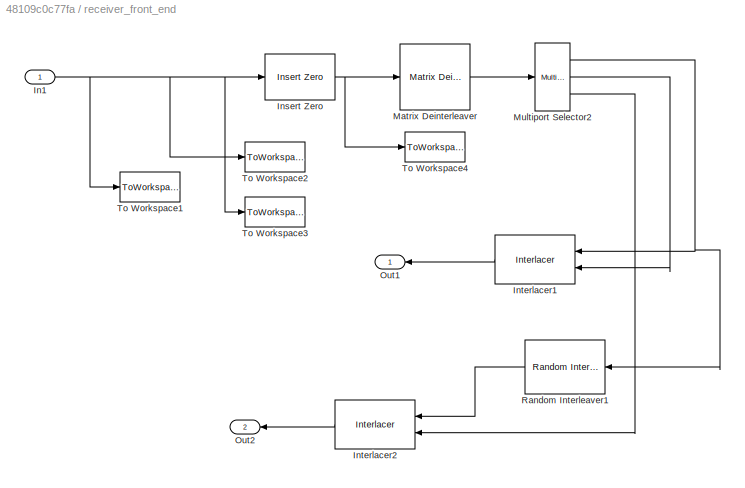
BLOCK [SubSystem] receiver_front_end
  Ports = [1, 2]
  RequestExecContextInheritance = off
BLOCK [Inport] receiver_front_end/In1
BLOCK [Reference] receiver_front_end/Insert Zero  REF=commobslib/Insert Zero
  Ports = [1, 1]
  SourceBlock = commobslib/Insert Zero
  SourceProductBaseCode = CM
  SourceType = Insert Zero
BLOCK [Reference] receiver_front_end/Interlacer1  REF=commsequence2/Interlacer
  NameLocation = top
  Ports = [2, 1]
  SourceBlock = commsequence2/Interlacer
  SourceProductBaseCode = CM
  SourceType = Interlacer
BLOCK [Reference] receiver_front_end/Interlacer2  REF=commsequence2/Interlacer
  NameLocation = top
  Ports = [2, 1]
  SourceBlock = commsequence2/Interlacer
  SourceProductBaseCode = CM
  SourceType = Interlacer
BLOCK [Reference] receiver_front_end/Matrix Deinterleaver  REF=commblkintrlv2/Matrix
Deinterleaver
  Ports = [1, 1]
  SourceBlock = commblkintrlv2/Matrix\nDeinterleaver
  SourceProductBaseCode = CM
  SourceType = Matrix Deinterleaver
BLOCK [Reference] receiver_front_end/Multiport Selector2  REF=dspindex/Multiport
Selector
  Ports = [1, 3]
  SourceBlock = dspindex/Multiport\nSelector
  SourceProductBaseCode = DS
  SourceType = Multiport Selector
BLOCK [Outport] receiver_front_end/Out1
BLOCK [Outport] receiver_front_end/Out2
  Port = 2
BLOCK [Reference] receiver_front_end/Random Interleaver1  REF=commblkintrlv2/Random
Interleaver
  Ports = [1, 1]
  SourceBlock = commblkintrlv2/Random\nInterleaver
  SourceProductBaseCode = CM
  SourceType = Random Interleaver
BLOCK [ToWorkspace] receiver_front_end/To Workspace1
  MaxDataPoints = inf
  Ports = [1]
  SampleTime = -1
  VariableName = simout4
BLOCK [ToWorkspace] receiver_front_end/To Workspace2
  MaxDataPoints = inf
  Ports = [1]
  SampleTime = -1
  VariableName = simout5
BLOCK [ToWorkspace] receiver_front_end/To Workspace3
  MaxDataPoints = inf
  Ports = [1]
  SampleTime = -1
  VariableName = simout6
BLOCK [ToWorkspace] receiver_front_end/To Workspace4
  MaxDataPoints = inf
  Ports = [1]
  SampleTime = -1
  VariableName = simout7
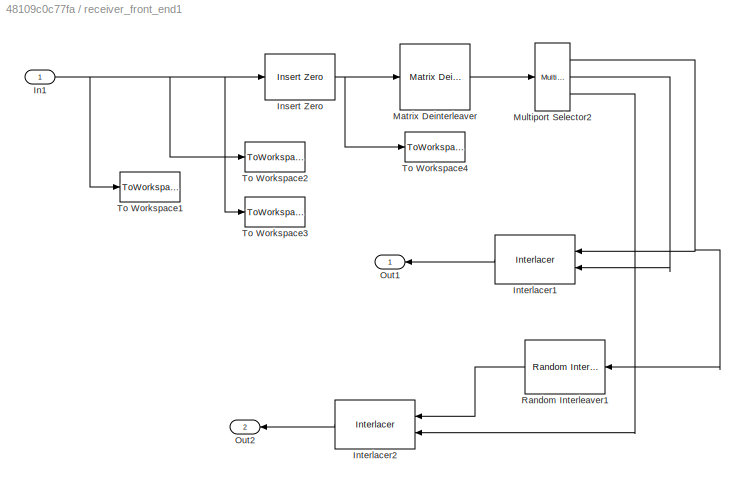
BLOCK [SubSystem] receiver_front_end1
  Ports = [1, 2]
  RequestExecContextInheritance = off
BLOCK [Inport] receiver_front_end1/In1
BLOCK [Reference] receiver_front_end1/Insert Zero  REF=commobslib/Insert Zero
  Ports = [1, 1]
  SourceBlock = commobslib/Insert Zero
  SourceProductBaseCode = CM
  SourceType = Insert Zero
BLOCK [Reference] receiver_front_end1/Interlacer1  REF=commsequence2/Interlacer
  NameLocation = top
  Ports = [2, 1]
  SourceBlock = commsequence2/Interlacer
  SourceProductBaseCode = CM
  SourceType = Interlacer
BLOCK [Reference] receiver_front_end1/Interlacer2  REF=commsequence2/Interlacer
  NameLocation = top
  Ports = [2, 1]
  SourceBlock = commsequence2/Interlacer
  SourceProductBaseCode = CM
  SourceType = Interlacer
BLOCK [Reference] receiver_front_end1/Matrix Deinterleaver  REF=commblkintrlv2/Matrix
Deinterleaver
  Ports = [1, 1]
  SourceBlock = commblkintrlv2/Matrix\nDeinterleaver
  SourceProductBaseCode = CM
  SourceType = Matrix Deinterleaver
BLOCK [Reference] receiver_front_end1/Multiport Selector2  REF=dspindex/Multiport
Selector
  Ports = [1, 3]
  SourceBlock = dspindex/Multiport\nSelector
  SourceProductBaseCode = DS
  SourceType = Multiport Selector
BLOCK [Outport] receiver_front_end1/Out1
BLOCK [Outport] receiver_front_end1/Out2
  Port = 2
BLOCK [Reference] receiver_front_end1/Random Interleaver1  REF=commblkintrlv2/Random
Interleaver
  Ports = [1, 1]
  SourceBlock = commblkintrlv2/Random\nInterleaver
  SourceProductBaseCode = CM
  SourceType = Random Interleaver
BLOCK [ToWorkspace] receiver_front_end1/To Workspace1
  MaxDataPoints = inf
  Ports = [1]
  SampleTime = -1
  VariableName = simout8
BLOCK [ToWorkspace] receiver_front_end1/To Workspace2
  MaxDataPoints = inf
  Ports = [1]
  SampleTime = -1
  VariableName = simout9
BLOCK [ToWorkspace] receiver_front_end1/To Workspace3
  MaxDataPoints = inf
  Ports = [1]
  SampleTime = -1
  VariableName = simout10
BLOCK [ToWorkspace] receiver_front_end1/To Workspace4
  MaxDataPoints = inf
  Ports = [1]
  SampleTime = -1
  VariableName = simout11
BLOCK [SubSystem] turbo_coder
  Ports = [2, 1]
  RequestExecContextInheritance = off
BLOCK [Reference] turbo_coder/APP Decoder  REF=commcnvcod2/APP Decoder
  NameLocation = right
  Ports = [2, 2]
  SourceBlock = commcnvcod2/APP Decoder
  SourceProductBaseCode = CM
  SourceType = APP Decoder
BLOCK [Reference] turbo_coder/APP Decoder1  REF=commcnvcod2/APP Decoder
  NameLocation = top
  Ports = [2, 2]
  SourceBlock = commcnvcod2/APP Decoder
  SourceProductBaseCode = CM
  SourceType = APP Decoder
BLOCK [Delay] turbo_coder/Delay
  DelayLength = Len
  InitialCondition = 0
  InputPortMap = u0
  InputProcessing = Columns as channels (frame based)
  Ports = [1, 1]
  UserDataPersistent = on
BLOCK [DiscretePulseGenerator] turbo_coder/Discrete Pulse Generator
  Period = Iter
  PhaseDelay = 1
  Ports = [0, 1]
  PulseWidth = Iter-1
BLOCK [Product] turbo_coder/Frame Reset
  InputSameDT = on
  OutDataTypeStr = Inherit: Same as first input
  Ports = [2, 1]
  SaturateOnIntegerOverflow = on
BLOCK [SubSystem] turbo_coder/Hard Decision1
  NameLocation = top
  Ports = [1, 1]
  RequestExecContextInheritance = off
BLOCK [Outport] turbo_coder/Hard Decision1/0//1
  NameLocation = top
BLOCK [Constant] turbo_coder/Hard Decision1/Constant
  Value = 0
BLOCK [Inport] turbo_coder/Hard Decision1/Lin
  NameLocation = top
BLOCK [RelationalOperator] turbo_coder/Hard Decision1/Relational Operator
  Ports = [2, 1]
BLOCK [Inport] turbo_coder/In1
  NameLocation = right
BLOCK [Inport] turbo_coder/In2
  Port = 2
BLOCK [Outport] turbo_coder/Out1
BLOCK [Reference] turbo_coder/Random Deinterleaver  REF=commblkintrlv2/Random
Deinterleaver
  NameLocation = right
  Ports = [1, 1]
  SourceBlock = commblkintrlv2/Random\nDeinterleaver
  SourceProductBaseCode = CM
  SourceType = Random Deinterleaver
BLOCK [Reference] turbo_coder/Random Interleaver3  REF=commblkintrlv2/Random
Interleaver
  NameLocation = top
  Ports = [1, 1]
  SourceBlock = commblkintrlv2/Random\nInterleaver
  SourceProductBaseCode = CM
  SourceType = Random Interleaver
BLOCK [Terminator] turbo_coder/Terminator1
BLOCK [Terminator] turbo_coder/Terminator2
  NameLocation = top
BLOCK [SubSystem] turbo_coder1
  Ports = [2, 1]
  RequestExecContextInheritance = off
BLOCK [Reference] turbo_coder1/APP Decoder  REF=commcnvcod2/APP Decoder
  NameLocation = right
  Ports = [2, 2]
  SourceBlock = commcnvcod2/APP Decoder
  SourceProductBaseCode = CM
  SourceType = APP Decoder
BLOCK [Reference] turbo_coder1/APP Decoder1  REF=commcnvcod2/APP Decoder
  NameLocation = top
  Ports = [2, 2]
  SourceBlock = commcnvcod2/APP Decoder
  SourceProductBaseCode = CM
  SourceType = APP Decoder
BLOCK [Delay] turbo_coder1/Delay
  DelayLength = Len
  InitialCondition = 0
  InputPortMap = u0
  InputProcessing = Columns as channels (frame based)
  Ports = [1, 1]
  UserDataPersistent = on
BLOCK [DiscretePulseGenerator] turbo_coder1/Discrete Pulse Generator
  Period = Iter
  PhaseDelay = 1
  Ports = [0, 1]
  PulseWidth = Iter-1
BLOCK [Product] turbo_coder1/Frame Reset
  InputSameDT = on
  OutDataTypeStr = Inherit: Same as first input
  Ports = [2, 1]
  SaturateOnIntegerOverflow = on
BLOCK [SubSystem] turbo_coder1/Hard Decision1
  NameLocation = top
  Ports = [1, 1]
  RequestExecContextInheritance = off
BLOCK [Outport] turbo_coder1/Hard Decision1/0//1
  NameLocation = top
BLOCK [Constant] turbo_coder1/Hard Decision1/Constant
  Value = 0
BLOCK [Inport] turbo_coder1/Hard Decision1/Lin
  NameLocation = top
BLOCK [RelationalOperator] turbo_coder1/Hard Decision1/Relational Operator
  Ports = [2, 1]
BLOCK [Inport] turbo_coder1/In1
  NameLocation = right
BLOCK [Inport] turbo_coder1/In2
  Port = 2
BLOCK [Outport] turbo_coder1/Out1
BLOCK [Reference] turbo_coder1/Random Deinterleaver  REF=commblkintrlv2/Random
Deinterleaver
  NameLocation = right
  Ports = [1, 1]
  SourceBlock = commblkintrlv2/Random\nDeinterleaver
  SourceProductBaseCode = CM
  SourceType = Random Deinterleaver
BLOCK [Reference] turbo_coder1/Random Interleaver3  REF=commblkintrlv2/Random
Interleaver
  NameLocation = top
  Ports = [1, 1]
  SourceBlock = commblkintrlv2/Random\nInterleaver
  SourceProductBaseCode = CM
  SourceType = Random Interleaver
BLOCK [Terminator] turbo_coder1/Terminator1
BLOCK [Terminator] turbo_coder1/Terminator2
  NameLocation = top
BLOCK [SubSystem] turbo_encoder
  Ports = [1, 1]
  RequestExecContextInheritance = off
BLOCK [Reference] turbo_encoder/Convolutional Encoder  REF=commcnvcod2/Convolutional
Encoder
  Ports = [1, 1]
  SourceBlock = commcnvcod2/Convolutional\nEncoder
  SourceProductBaseCode = CM
  SourceType = Convolutional Encoder
BLOCK [Reference] turbo_encoder/Convolutional Encoder1  REF=commcnvcod2/Convolutional
Encoder
  Ports = [1, 1]
  SourceBlock = commcnvcod2/Convolutional\nEncoder
  SourceProductBaseCode = CM
  SourceType = Convolutional Encoder
BLOCK [Reference] turbo_encoder/Deinterlacer  REF=commsequence2/Deinterlacer
  Ports = [1, 2]
  SourceBlock = commsequence2/Deinterlacer
  SourceProductBaseCode = CM
  SourceType = Deinterlacer
BLOCK [Reference] turbo_encoder/Deinterlacer1  REF=commsequence2/Deinterlacer
  Ports = [1, 2]
  SourceBlock = commsequence2/Deinterlacer
  SourceProductBaseCode = CM
  SourceType = Deinterlacer
BLOCK [Inport] turbo_encoder/In1
BLOCK [Concatenate] turbo_encoder/Matrix Concatenate1
  Mode = Multidimensional array
  NumInputs = 3
  Ports = [3, 1]
BLOCK [Reference] turbo_encoder/Puncture to make 1//2 code rate  REF=commsequence2/Puncture
  Ports = [1, 1]
  SourceBlock = commsequence2/Puncture
  SourceProductBaseCode = CM
  SourceType = Puncture
BLOCK [Reference] turbo_encoder/Random Interleaver  REF=commblkintrlv2/Random
Interleaver
  Ports = [1, 1]
  SourceBlock = commblkintrlv2/Random\nInterleaver
  SourceProductBaseCode = CM
  SourceType = Random Interleaver
BLOCK [Terminator] turbo_encoder/Terminator3
BLOCK [Outport] turbo_encoder/encoded
BLOCK [Reference] turbo_encoder/read from column to row  REF=commblkintrlv2/Matrix
Interleaver
  Ports = [1, 1]
  SourceBlock = commblkintrlv2/Matrix\nInterleaver
  SourceProductBaseCode = CM
  SourceType = Matrix Interleaver
BLOCK [SubSystem] turbo_encoder1
  Ports = [1, 1]
  RequestExecContextInheritance = off
BLOCK [Reference] turbo_encoder1/Convolutional Encoder  REF=commcnvcod2/Convolutional
Encoder
  Ports = [1, 1]
  SourceBlock = commcnvcod2/Convolutional\nEncoder
  SourceProductBaseCode = CM
  SourceType = Convolutional Encoder
BLOCK [Reference] turbo_encoder1/Convolutional Encoder1  REF=commcnvcod2/Convolutional
Encoder
  Ports = [1, 1]
  SourceBlock = commcnvcod2/Convolutional\nEncoder
  SourceProductBaseCode = CM
  SourceType = Convolutional Encoder
BLOCK [Reference] turbo_encoder1/Deinterlacer  REF=commsequence2/Deinterlacer
  Ports = [1, 2]
  SourceBlock = commsequence2/Deinterlacer
  SourceProductBaseCode = CM
  SourceType = Deinterlacer
BLOCK [Reference] turbo_encoder1/Deinterlacer1  REF=commsequence2/Deinterlacer
  Ports = [1, 2]
  SourceBlock = commsequence2/Deinterlacer
  SourceProductBaseCode = CM
  SourceType = Deinterlacer
BLOCK [Inport] turbo_encoder1/In1
BLOCK [Concatenate] turbo_encoder1/Matrix Concatenate1
  Mode = Multidimensional array
  NumInputs = 3
  Ports = [3, 1]
BLOCK [Reference] turbo_encoder1/Puncture to make 1//2 code rate  REF=commsequence2/Puncture
  Ports = [1, 1]
  SourceBlock = commsequence2/Puncture
  SourceProductBaseCode = CM
  SourceType = Puncture
BLOCK [Reference] turbo_encoder1/Random Interleaver  REF=commblkintrlv2/Random
Interleaver
  Ports = [1, 1]
  SourceBlock = commblkintrlv2/Random\nInterleaver
  SourceProductBaseCode = CM
  SourceType = Random Interleaver
BLOCK [Terminator] turbo_encoder1/Terminator3
BLOCK [Outport] turbo_encoder1/encoded
BLOCK [Reference] turbo_encoder1/read from column to row  REF=commblkintrlv2/Matrix
Interleaver
  Ports = [1, 1]
  SourceBlock = commblkintrlv2/Matrix\nInterleaver
  SourceProductBaseCode = CM
  SourceType = Matrix Interleaver
ANNOTATION (root): LTE Receiver
ANNOTATION (root): LTE Transmitter
ANNOTATION (root): Multipath Channel and AWGN
ANNOTATION (root): Natalia Molinero Mingorance UNIVERSIDAD EUROPEA DE MADRID
ANNOTATION (root): SIMULATION OF THE LTE SYSTEM ON MULTIPATH RAYLEIGH FADING CHANNEL USING CRC, TURBO CODER 16-QAM, PILOTS AND OFDM TRAINING BASED CHANNEL ESTIMATOR
NET AWGN Channel1:1 -> Spectrum Scope1:1, Subsystem3:1
NET AWGN Channel2:1 -> Spectrum Scope2:1, Subsystem15:1
LINE Add4:1 -> Saturation1:1
NET CRC-N Syndrome Detector1:1 -> Display7:1, Embedded MATLAB Function2:1, Embedded MATLAB Function:2
LINE CRC-N Syndrome Detector1:2 -> Display1:1
NET CRC-N Syndrome Detector2:1 -> Embedded MATLAB Function4:2, Embedded MATLAB Function5:1
LINE CRC-N Syndrome Detector2:2 -> Display10:1
NET Ceil:1 -> Display5:1, Embedded MATLAB Function1:1
LINE Constant1:1 -> Divide1:2
LINE Constant2:1 -> Add4:1
LINE Constant3:1 -> Divide:2
LINE Divide1:1 -> Ceil:1
LINE Divide:1 -> Embedded MATLAB Function6:1
NET Embedded MATLAB Function1:1 -> Display6:1, Embedded MATLAB Function:1, General CRC Generator4:1
NET Embedded MATLAB Function2:1 -> Display2:1, Divide:1
NET Embedded MATLAB Function3:1 -> Embedded MATLAB Function4:1, General CRC Generator1:1
LINE Embedded MATLAB Function4:1 -> Display9:1
NET Embedded MATLAB Function5:1 -> CAP 611_Switch_Control:1, Display11:1
NET Embedded MATLAB Function6:1 -> Add4:2, Display3:1
LINE Embedded MATLAB Function:1 -> Display:1
LINE Gain1:1 -> receiver_front_end:1
LINE Gain2:1 -> receiver_front_end1:1
LINE General CRC Generator1:1 -> turbo_encoder1:1
LINE General CRC Generator4:1 -> turbo_encoder:1
LINE LLR1:1 -> Gain2:1
LINE LLR:1 -> Gain1:1
LINE MATLAB Function:1 -> Embedded MATLAB Function3:1
NET Port 3:1 -> Display8:1, Divide1:1
LINE Rectangular QAM Modulator Baseband1:1 -> Subsystem:2
LINE Rectangular QAM Modulator Baseband2:1 -> Subsystem8:2
LINE SISO Fading Channel1:1 -> AWGN Channel2:1
LINE SISO Fading Channel:1 -> AWGN Channel1:1
NET Saturation1:1 -> Display4:1, MATLAB Function:1
LINE Subsystem/DSP Constant:1 -> Subsystem/Matrix Concatenation:2
LINE Subsystem/IFFT:1 -> Subsystem/Subsystem:1
LINE Subsystem/In1:1 -> Subsystem/Matrix Concatenation1:1
LINE Subsystem/In2:1 -> Subsystem/Multiport Selector:1
LINE Subsystem/Matrix Concatenation1:1 -> Subsystem/Subsystem1:1
LINE Subsystem/Matrix Concatenation:1 -> Subsystem/Matrix Concatenation1:2
LINE Subsystem/Multiport Selector:1 -> Subsystem/Matrix Concatenation:1
LINE Subsystem/Multiport Selector:2 -> Subsystem/Matrix Concatenation:3
LINE Subsystem/Subsystem/In1:1 -> Subsystem/Subsystem/Selector3:1
LINE Subsystem/Subsystem/Selector3:1 -> Subsystem/Subsystem/Out1:1
LINE Subsystem/Subsystem1/In1:1 -> Subsystem/Subsystem1/Zero Pad:1
LINE Subsystem/Subsystem1/Selector:1 -> Subsystem/Subsystem1/Out1:1
LINE Subsystem/Subsystem1/Zero Pad:1 -> Subsystem/Subsystem1/Selector:1
LINE Subsystem/Subsystem1:1 -> Subsystem/IFFT:1
LINE Subsystem/Subsystem:1 -> Subsystem/Out1:1
LINE Subsystem1/FFT:1 -> Subsystem1/Selector1:1
LINE Subsystem1/Frame Status Conversion:1 -> Subsystem1/Multiport Selector:1
LINE Subsystem1/In1:1 -> Subsystem1/Subsystem:1
LINE Subsystem1/Multiport Selector:1 -> Subsystem1/Out1:1
LINE Subsystem1/Multiport Selector:2 -> Subsystem1/Out2:1
LINE Subsystem1/Selector1:1 -> Subsystem1/Frame Status Conversion:1
LINE Subsystem1/Subsystem/In1:1 -> Subsystem1/Subsystem/Selector4:1
LINE Subsystem1/Subsystem/Selector4:1 -> Subsystem1/Subsystem/Out1:1
LINE Subsystem1/Subsystem:1 -> Subsystem1/FFT:1
LINE Subsystem10/In1:1 -> Subsystem10/Selector2:1
NET Subsystem10/Selector2:1 -> Subsystem10/Goto2:1, Subsystem10/Out1:1
NET Subsystem10:1 -> Discrete-Time Scatter Plot Scope1:1, LLR:1
LINE Subsystem11/In1:1 -> Subsystem11/Selector2:1
NET Subsystem11/Selector2:1 -> Subsystem11/Goto2:1, Subsystem11/Out1:1
NET Subsystem11:1 -> Discrete-Time Scatter Plot Scope2:1, LLR1:1
LINE Subsystem12/PN Sequence Generator:1 -> Subsystem12/Unipolar to Bipolar Converter:1
LINE Subsystem12/Unipolar to Bipolar Converter:1 -> Subsystem12/Out1:1
LINE Subsystem12:1 -> Subsystem8:1
LINE Subsystem13/PN Sequence Generator:1 -> Subsystem13/Unipolar to Bipolar Converter:1
LINE Subsystem13/Unipolar to Bipolar Converter:1 -> Subsystem13/Out1:1
LINE Subsystem13:1 -> Subsystem:1
LINE Subsystem14/In1:1 -> Subsystem14/Unbuffer3:1
LINE Subsystem14/Unbuffer3:1 -> Subsystem14/Out1:1
LINE Subsystem14:1 -> SISO Fading Channel1:1
LINE Subsystem15/Buffer:1 -> Subsystem15/Out1:1
LINE Subsystem15/Complex to Real-Imag:1 -> Subsystem15/Goto:1
LINE Subsystem15/Complex to Real-Imag:2 -> Subsystem15/Goto2:1
NET Subsystem15/In1:1 -> Subsystem15/Buffer:1, Subsystem15/Complex to Real-Imag:1, Subsystem15/Goto1:1
LINE Subsystem15:1 -> Subsystem18:1
LINE Subsystem16/Frame Status Conversion5:1 -> Subsystem16/Out1:1
LINE Subsystem16/In1:1 -> Subsystem16/Product:2
LINE Subsystem16/In2:1 -> Subsystem16/Product:1
LINE Subsystem16/Product:1 -> Subsystem16/Frame Status Conversion5:1
LINE Subsystem16:1 -> Subsystem11:1
LINE Subsystem17/Frame Status Conversion2:1 -> Subsystem17/Subsystem:1
LINE Subsystem17/Frame Status Conversion4:1 -> Subsystem17/Out1:1
LINE Subsystem17/In1:1 -> Subsystem17/Product:2
LINE Subsystem17/Product:1 -> Subsystem17/Frame Status Conversion2:1
NET Subsystem17/Step2:1 -> Subsystem17/Subsystem4:enable, Subsystem17/Subsystem:enable
LINE Subsystem17/Subsystem/In1:1 -> Subsystem17/Subsystem/Math Function:1
LINE Subsystem17/Subsystem/Math Function:1 -> Subsystem17/Subsystem/Out1:1
LINE Subsystem17/Subsystem4/Frame Status Conversion2:1 -> Subsystem17/Subsystem4/Out1:1
LINE Subsystem17/Subsystem4/Math Function:1 -> Subsystem17/Subsystem4/Frame Status Conversion2:1
LINE Subsystem17/Subsystem4/PN Sequence Generator:1 -> Subsystem17/Subsystem4/Unipolar to Bipolar Converter:1
LINE Subsystem17/Subsystem4/Unipolar to Bipolar Converter:1 -> Subsystem17/Subsystem4/Math Function:1
LINE Subsystem17/Subsystem4:1 -> Subsystem17/Product:1
LINE Subsystem17/Subsystem:1 -> Subsystem17/Frame Status Conversion4:1
LINE Subsystem17:1 -> Subsystem16:2
LINE Subsystem18/In1:1 -> Subsystem18/Multiport Selector1:1
LINE Subsystem18/Matrix Concatenation1:1 -> Subsystem18/Out1:1
LINE Subsystem18/Multiport Selector1:1 -> Subsystem18/Matrix Concatenation1:1
LINE Subsystem18/Multiport Selector1:2 -> Subsystem18/Matrix Concatenation1:2
LINE Subsystem18:1 -> Subsystem9:1
LINE Subsystem19/In1:1 -> Subsystem19/Multiport Selector:1
LINE Subsystem19/Matrix Concatenation:1 -> Subsystem19/Out1:1
LINE Subsystem19/Multiport Selector:1 -> Subsystem19/Matrix Concatenation:1
LINE Subsystem19/Multiport Selector:2 -> Subsystem19/Matrix Concatenation:2
LINE Subsystem19:1 -> Subsystem14:1
LINE Subsystem1:1 -> Subsystem4:1
LINE Subsystem1:2 -> Subsystem5:1
LINE Subsystem2/In1:1 -> Subsystem2/Unbuffer3:1
LINE Subsystem2/Unbuffer3:1 -> Subsystem2/Out1:1
NET Subsystem2:1 -> SISO Fading Channel:1, Spectrum Scope:1
LINE Subsystem3/Buffer:1 -> Subsystem3/Out1:1
LINE Subsystem3/Complex to Real-Imag:1 -> Subsystem3/Goto:1
LINE Subsystem3/Complex to Real-Imag:2 -> Subsystem3/Goto2:1
NET Subsystem3/In1:1 -> Subsystem3/Buffer:1, Subsystem3/Complex to Real-Imag:1, Subsystem3/Goto1:1
LINE Subsystem3:1 -> Subsystem6:1
LINE Subsystem4/Frame Status Conversion5:1 -> Subsystem4/Out1:1
LINE Subsystem4/In1:1 -> Subsystem4/Product:2
LINE Subsystem4/In2:1 -> Subsystem4/Product:1
LINE Subsystem4/Product:1 -> Subsystem4/Frame Status Conversion5:1
LINE Subsystem4:1 -> Subsystem10:1
LINE Subsystem5/Frame Status Conversion2:1 -> Subsystem5/Subsystem:1
LINE Subsystem5/Frame Status Conversion4:1 -> Subsystem5/Out1:1
LINE Subsystem5/In1:1 -> Subsystem5/Product:2
LINE Subsystem5/Product:1 -> Subsystem5/Frame Status Conversion2:1
NET Subsystem5/Step2:1 -> Subsystem5/Subsystem4:enable, Subsystem5/Subsystem:enable
LINE Subsystem5/Subsystem/In1:1 -> Subsystem5/Subsystem/Math Function:1
LINE Subsystem5/Subsystem/Math Function:1 -> Subsystem5/Subsystem/Out1:1
LINE Subsystem5/Subsystem4/Frame Status Conversion2:1 -> Subsystem5/Subsystem4/Out1:1
LINE Subsystem5/Subsystem4/Math Function:1 -> Subsystem5/Subsystem4/Frame Status Conversion2:1
LINE Subsystem5/Subsystem4/PN Sequence Generator:1 -> Subsystem5/Subsystem4/Unipolar to Bipolar Converter:1
LINE Subsystem5/Subsystem4/Unipolar to Bipolar Converter:1 -> Subsystem5/Subsystem4/Math Function:1
LINE Subsystem5/Subsystem4:1 -> Subsystem5/Product:1
LINE Subsystem5/Subsystem:1 -> Subsystem5/Frame Status Conversion4:1
LINE Subsystem5:1 -> Subsystem4:2
LINE Subsystem6/In1:1 -> Subsystem6/Multiport Selector1:1
LINE Subsystem6/Matrix Concatenation1:1 -> Subsystem6/Out1:1
LINE Subsystem6/Multiport Selector1:1 -> Subsystem6/Matrix Concatenation1:1
LINE Subsystem6/Multiport Selector1:2 -> Subsystem6/Matrix Concatenation1:2
LINE Subsystem6:1 -> Subsystem1:1
LINE Subsystem7/In1:1 -> Subsystem7/Multiport Selector:1
LINE Subsystem7/Matrix Concatenation:1 -> Subsystem7/Out1:1
LINE Subsystem7/Multiport Selector:1 -> Subsystem7/Matrix Concatenation:1
LINE Subsystem7/Multiport Selector:2 -> Subsystem7/Matrix Concatenation:2
LINE Subsystem7:1 -> Subsystem2:1
LINE Subsystem8/DSP Constant:1 -> Subsystem8/Matrix Concatenation:2
LINE Subsystem8/IFFT:1 -> Subsystem8/Subsystem:1
LINE Subsystem8/In1:1 -> Subsystem8/Matrix Concatenation1:1
LINE Subsystem8/In2:1 -> Subsystem8/Multiport Selector:1
LINE Subsystem8/Matrix Concatenation1:1 -> Subsystem8/Subsystem1:1
LINE Subsystem8/Matrix Concatenation:1 -> Subsystem8/Matrix Concatenation1:2
LINE Subsystem8/Multiport Selector:1 -> Subsystem8/Matrix Concatenation:1
LINE Subsystem8/Multiport Selector:2 -> Subsystem8/Matrix Concatenation:3
LINE Subsystem8/Subsystem/In1:1 -> Subsystem8/Subsystem/Selector3:1
LINE Subsystem8/Subsystem/Selector3:1 -> Subsystem8/Subsystem/Out1:1
LINE Subsystem8/Subsystem1/In1:1 -> Subsystem8/Subsystem1/Zero Pad:1
LINE Subsystem8/Subsystem1/Selector:1 -> Subsystem8/Subsystem1/Out1:1
LINE Subsystem8/Subsystem1/Zero Pad:1 -> Subsystem8/Subsystem1/Selector:1
LINE Subsystem8/Subsystem1:1 -> Subsystem8/IFFT:1
LINE Subsystem8/Subsystem:1 -> Subsystem8/Out1:1
LINE Subsystem8:1 -> Subsystem19:1
LINE Subsystem9/FFT:1 -> Subsystem9/Selector1:1
LINE Subsystem9/Frame Status Conversion:1 -> Subsystem9/Multiport Selector:1
LINE Subsystem9/In1:1 -> Subsystem9/Subsystem:1
LINE Subsystem9/Multiport Selector:1 -> Subsystem9/Out1:1
LINE Subsystem9/Multiport Selector:2 -> Subsystem9/Out2:1
LINE Subsystem9/Selector1:1 -> Subsystem9/Frame Status Conversion:1
LINE Subsystem9/Subsystem/In1:1 -> Subsystem9/Subsystem/Selector4:1
LINE Subsystem9/Subsystem/Selector4:1 -> Subsystem9/Subsystem/Out1:1
LINE Subsystem9/Subsystem:1 -> Subsystem9/FFT:1
LINE Subsystem9:1 -> Subsystem16:1
LINE Subsystem9:2 -> Subsystem17:1
LINE Subsystem:1 -> Subsystem7:1
NET receiver_front_end/In1:1 -> receiver_front_end/Insert Zero:1, receiver_front_end/To Workspace1:1, receiver_front_end/To Workspace2:1, receiver_front_end/To Workspace3:1
NET receiver_front_end/Insert Zero:1 -> receiver_front_end/Matrix Deinterleaver:1, receiver_front_end/To Workspace4:1
LINE receiver_front_end/Interlacer1:1 -> receiver_front_end/Out1:1
LINE receiver_front_end/Interlacer2:1 -> receiver_front_end/Out2:1
LINE receiver_front_end/Matrix Deinterleaver:1 -> receiver_front_end/Multiport Selector2:1
NET receiver_front_end/Multiport Selector2:1 -> receiver_front_end/Interlacer1:1, receiver_front_end/Random Interleaver1:1
LINE receiver_front_end/Multiport Selector2:2 -> receiver_front_end/Interlacer1:2
LINE receiver_front_end/Multiport Selector2:3 -> receiver_front_end/Interlacer2:2
LINE receiver_front_end/Random Interleaver1:1 -> receiver_front_end/Interlacer2:1
NET receiver_front_end1/In1:1 -> receiver_front_end1/Insert Zero:1, receiver_front_end1/To Workspace1:1, receiver_front_end1/To Workspace2:1, receiver_front_end1/To Workspace3:1
NET receiver_front_end1/Insert Zero:1 -> receiver_front_end1/Matrix Deinterleaver:1, receiver_front_end1/To Workspace4:1
LINE receiver_front_end1/Interlacer1:1 -> receiver_front_end1/Out1:1
LINE receiver_front_end1/Interlacer2:1 -> receiver_front_end1/Out2:1
LINE receiver_front_end1/Matrix Deinterleaver:1 -> receiver_front_end1/Multiport Selector2:1
NET receiver_front_end1/Multiport Selector2:1 -> receiver_front_end1/Interlacer1:1, receiver_front_end1/Random Interleaver1:1
LINE receiver_front_end1/Multiport Selector2:2 -> receiver_front_end1/Interlacer1:2
LINE receiver_front_end1/Multiport Selector2:3 -> receiver_front_end1/Interlacer2:2
LINE receiver_front_end1/Random Interleaver1:1 -> receiver_front_end1/Interlacer2:1
LINE receiver_front_end1:1 -> turbo_coder1:1
LINE receiver_front_end1:2 -> turbo_coder1:2
LINE receiver_front_end:1 -> turbo_coder:1
LINE receiver_front_end:2 -> turbo_coder:2
LINE turbo_coder/APP Decoder1:1 -> turbo_coder/Random Deinterleaver:1
LINE turbo_coder/APP Decoder1:2 -> turbo_coder/Terminator2:1
LINE turbo_coder/APP Decoder:1 -> turbo_coder/Random Interleaver3:1
LINE turbo_coder/APP Decoder:2 -> turbo_coder/Terminator1:1
LINE turbo_coder/Delay:1 -> turbo_coder/Frame Reset:1
LINE turbo_coder/Discrete Pulse Generator:1 -> turbo_coder/Frame Reset:2
LINE turbo_coder/Frame Reset:1 -> turbo_coder/APP Decoder:1
LINE turbo_coder/Hard Decision1/Constant:1 -> turbo_coder/Hard Decision1/Relational Operator:2
LINE turbo_coder/Hard Decision1/Lin:1 -> turbo_coder/Hard Decision1/Relational Operator:1
LINE turbo_coder/Hard Decision1/Relational Operator:1 -> turbo_coder/Hard Decision1/0//1:1
LINE turbo_coder/Hard Decision1:1 -> turbo_coder/Out1:1
LINE turbo_coder/In1:1 -> turbo_coder/APP Decoder:2
LINE turbo_coder/In2:1 -> turbo_coder/APP Decoder1:2
NET turbo_coder/Random Deinterleaver:1 -> turbo_coder/Delay:1, turbo_coder/Hard Decision1:1
LINE turbo_coder/Random Interleaver3:1 -> turbo_coder/APP Decoder1:1
LINE turbo_coder1/APP Decoder1:1 -> turbo_coder1/Random Deinterleaver:1
LINE turbo_coder1/APP Decoder1:2 -> turbo_coder1/Terminator2:1
LINE turbo_coder1/APP Decoder:1 -> turbo_coder1/Random Interleaver3:1
LINE turbo_coder1/APP Decoder:2 -> turbo_coder1/Terminator1:1
LINE turbo_coder1/Delay:1 -> turbo_coder1/Frame Reset:1
LINE turbo_coder1/Discrete Pulse Generator:1 -> turbo_coder1/Frame Reset:2
LINE turbo_coder1/Frame Reset:1 -> turbo_coder1/APP Decoder:1
LINE turbo_coder1/Hard Decision1/Constant:1 -> turbo_coder1/Hard Decision1/Relational Operator:2
LINE turbo_coder1/Hard Decision1/Lin:1 -> turbo_coder1/Hard Decision1/Relational Operator:1
LINE turbo_coder1/Hard Decision1/Relational Operator:1 -> turbo_coder1/Hard Decision1/0//1:1
LINE turbo_coder1/Hard Decision1:1 -> turbo_coder1/Out1:1
LINE turbo_coder1/In1:1 -> turbo_coder1/APP Decoder:2
LINE turbo_coder1/In2:1 -> turbo_coder1/APP Decoder1:2
NET turbo_coder1/Random Deinterleaver:1 -> turbo_coder1/Delay:1, turbo_coder1/Hard Decision1:1
LINE turbo_coder1/Random Interleaver3:1 -> turbo_coder1/APP Decoder1:1
LINE turbo_coder1:1 -> CRC-N Syndrome Detector2:1
LINE turbo_coder:1 -> CRC-N Syndrome Detector1:1
LINE turbo_encoder/Convolutional Encoder1:1 -> turbo_encoder/Deinterlacer1:1
LINE turbo_encoder/Convolutional Encoder:1 -> turbo_encoder/Deinterlacer:1
LINE turbo_encoder/Deinterlacer1:1 -> turbo_encoder/Terminator3:1
LINE turbo_encoder/Deinterlacer1:2 -> turbo_encoder/Matrix Concatenate1:3
LINE turbo_encoder/Deinterlacer:1 -> turbo_encoder/Matrix Concatenate1:1
LINE turbo_encoder/Deinterlacer:2 -> turbo_encoder/Matrix Concatenate1:2
NET turbo_encoder/In1:1 -> turbo_encoder/Convolutional Encoder:1, turbo_encoder/Random Interleaver:1
LINE turbo_encoder/Matrix Concatenate1:1 -> turbo_encoder/read from column to row:1
LINE turbo_encoder/Puncture to make 1//2 code rate:1 -> turbo_encoder/encoded:1
LINE turbo_encoder/Random Interleaver:1 -> turbo_encoder/Convolutional Encoder1:1
LINE turbo_encoder/read from column to row:1 -> turbo_encoder/Puncture to make 1//2 code rate:1
LINE turbo_encoder1/Convolutional Encoder1:1 -> turbo_encoder1/Deinterlacer1:1
LINE turbo_encoder1/Convolutional Encoder:1 -> turbo_encoder1/Deinterlacer:1
LINE turbo_encoder1/Deinterlacer1:1 -> turbo_encoder1/Terminator3:1
LINE turbo_encoder1/Deinterlacer1:2 -> turbo_encoder1/Matrix Concatenate1:3
LINE turbo_encoder1/Deinterlacer:1 -> turbo_encoder1/Matrix Concatenate1:1
LINE turbo_encoder1/Deinterlacer:2 -> turbo_encoder1/Matrix Concatenate1:2
NET turbo_encoder1/In1:1 -> turbo_encoder1/Convolutional Encoder:1, turbo_encoder1/Random Interleaver:1
LINE turbo_encoder1/Matrix Concatenate1:1 -> turbo_encoder1/read from column to row:1
LINE turbo_encoder1/Puncture to make 1//2 code rate:1 -> turbo_encoder1/encoded:1
LINE turbo_encoder1/Random Interleaver:1 -> turbo_encoder1/Convolutional Encoder1:1
LINE turbo_encoder1/read from column to row:1 -> turbo_encoder1/Puncture to make 1//2 code rate:1
LINE turbo_encoder1:1 -> Rectangular QAM Modulator Baseband2:1
LINE turbo_encoder:1 -> Rectangular QAM Modulator Baseband1:1
note: NET lines group one-source signal fan-out (src -> all destinations, sorted); 1:1 wires keep LINE
CHART Embedded
MATLAB Function states=1 transitions=1
  STATE_LABEL 'eML_blk_kernel()'
  STATE_LABEL 'SCRIPT:\nfunction ber = fcn(s2,s8)\ny=s2-s8;\nz=0;\nfor i=1:20\n    if y(i)~=0\n        z=z+1;\n    end\n    \nend\nber=z/(length(s2)*38);'
CHART Embedded
MATLAB Function2 states=1 transitions=1
  STATE_LABEL 'eML_blk_kernel()'
  STATE_LABEL "SCRIPT:\nfunction cer = fcn(s8)\nc1 = s8';\nc=0;\nfor i=1:length(c1)\n    c= c+ (c1(i)*2^(length(c1)-i));\nend \ncer = c;\n"
CHART MATLAB Function states=1 transitions=1
  STATE_LABEL 'eML_blk_kernel()'
  STATE_LABEL 'SCRIPT:\nfunction y = fcn(u)\n    if u>= 0.05\n        y=1;  \n        \n    else \n        y=0;\n%          pause(10.0);\n    end\nend\n'
CHART Embedded
MATLAB Function3 states=1 transitions=1
  STATE_LABEL 'eML_blk_kernel()'
  STATE_LABEL "SCRIPT:\nfunction ber = fcn(s2)\n%x = de2bi(s2)\n%y = len(x)\nb = zeros(20,1);\na = (de2bi(s2))';\nla = length(a);\nlb = length(b);\nfor i = 1:la\n    b(lb+1-i) = a(i);  \nend\n\nber = b;\n"
CHART Embedded
MATLAB Function4 states=1 transitions=1
  STATE_LABEL 'eML_blk_kernel()'
  STATE_LABEL 'SCRIPT:\nfunction ber = fcn(s2,s8)\ny=s2-s8;\nz=0;\nfor i=1:20\n    if y(i)~=0\n        z=z+1;\n    end\n    \nend\nber=z/(length(s2)*38);'
CHART Embedded
MATLAB Function5 states=1 transitions=1
  STATE_LABEL 'eML_blk_kernel()'
  STATE_LABEL "SCRIPT:\nfunction cer = fcn(s8)\nc1 = s8';\nc=0;\nfor i=1:length(c1)\n    c= c+ (c1(i)*2^(length(c1)-i));\nend \ncer = c;\n"
CHART Embedded
MATLAB Function6 states=1 transitions=1
  STATE_LABEL 'eML_blk_kernel()'
  STATE_LABEL 'SCRIPT:\nfunction cer = fcn(s8)\nif s8>1.03\n    c= 1.03;\nelse\n    c=s8;\nend\ncer = c;\n'
CHART Embedded
MATLAB Function1 states=1 transitions=1
  STATE_LABEL 'eML_blk_kernel()'
  STATE_LABEL "SCRIPT:\nfunction ber = fcn(s2)\n%x = de2bi(s2)\n%y = len(x)\nb = zeros(20,1);\na = (de2bi(s2))';\nla = length(a);\nlb = length(b);\nfor i = 1:la\n    b(lb+1-i) = a(i);  \nend\n\nber = b;\n"
CHART  states=0 transitions=0
CHART  states=0 transitions=0
CHART  states=0 transitions=0
CHART  states=0 transitions=0
CHART  states=0 transitions=0
CHART  states=0 transitions=0
CHART  states=0 transitions=0
CHART  states=0 transitions=0
